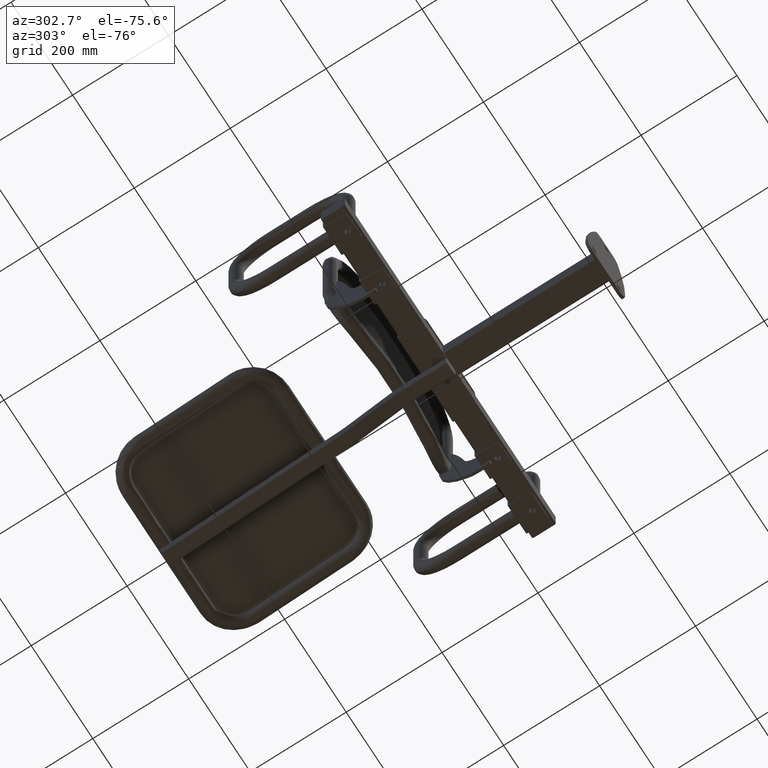
[diagram: clean part render]
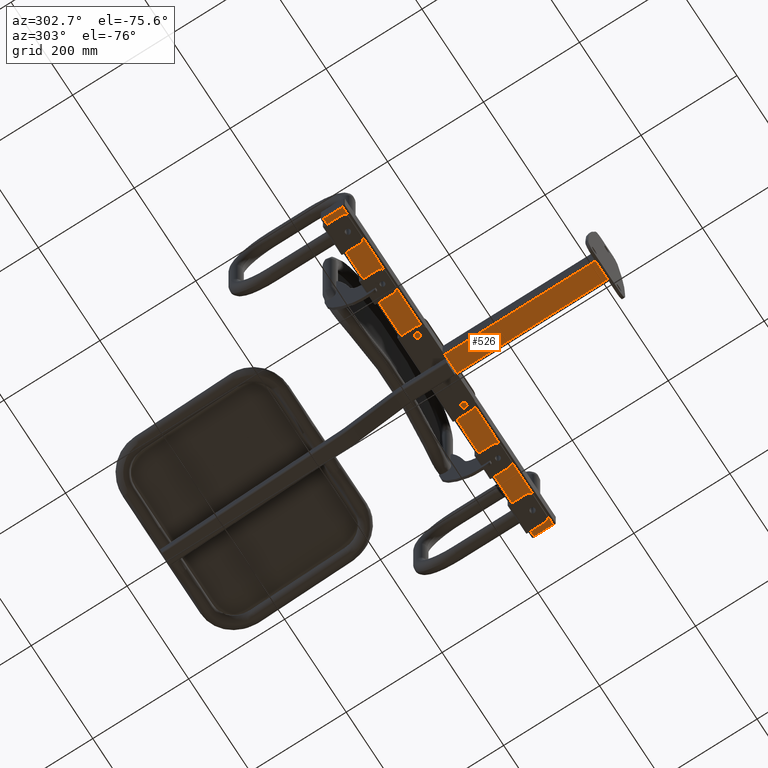
[diagram: same view with one face highlighted and labeled with its STEP entity id]
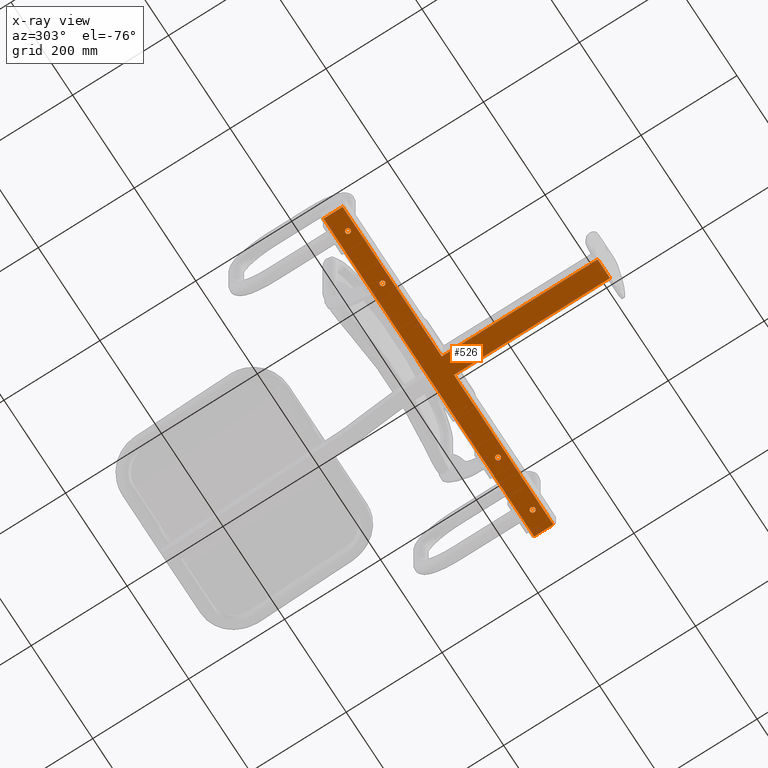
[diagram: x-ray of the same camera — body ghosted, the highlighted face saturated]
A machine part, auxiliary view. The second image highlights one B-rep face of the part: STEP entity #526.
The next image is the same camera in x-ray: the body ghosted, the highlighted face saturated — about 0% of this face is hidden behind the body in this view.
In plain terms, the highlighted planar face has unit normal (0, 0, -1).
Its self-contained STEP definition (entity closure, byte-faithful):
#298 = ORIENTED_EDGE ( 'NONE', *, *, #11733, .T. ) ;
#303 = ORIENTED_EDGE ( 'NONE', *, *, #11637, .T. ) ;
#306 = ORIENTED_EDGE ( 'NONE', *, *, #15418, .T. ) ;
#526 = ADVANCED_FACE ( 'NONE', ( #1681, #1685, #1680, #1682, #1683 ), #9831, .T. ) ;
#811 = CIRCLE ( 'NONE', #15543, 5.250000000000004400 ) ;
#814 = CIRCLE ( 'NONE', #15545, 5.250000000000004400 ) ;
#819 = CIRCLE ( 'NONE', #15549, 5.250000000000032000 ) ;
#1170 = AXIS2_PLACEMENT_3D ( 'NONE', #14410, #14411, #14412 ) ;
#1171 = AXIS2_PLACEMENT_3D ( 'NONE', #14415, #14416, #14417 ) ;
#1680 = FACE_OUTER_BOUND ( 'NONE', #11894, .T. ) ;
#1681 = FACE_BOUND ( 'NONE', #11879, .T. ) ;
#1682 = FACE_BOUND ( 'NONE', #11864, .T. ) ;
#1683 = FACE_BOUND ( 'NONE', #11904, .T. ) ;
#1685 = FACE_BOUND ( 'NONE', #11872, .T. ) ;
#2258 = EDGE_CURVE ( 'NONE', #10434, #10343, #6448, .T. ) ;
#2259 = EDGE_CURVE ( 'NONE', #10343, #10416, #6449, .T. ) ;
#2260 = EDGE_CURVE ( 'NONE', #10415, #10369, #6453, .T. ) ;
#2261 = EDGE_CURVE ( 'NONE', #10326, #10338, #6455, .T. ) ;
#2262 = EDGE_CURVE ( 'NONE', #10318, #10334, #6451, .T. ) ;
#2314 = EDGE_CURVE ( 'NONE', #10415, #10416, #6540, .T. ) ;
#3466 = ORIENTED_EDGE ( 'NONE', *, *, #2259, .T. ) ;
#3470 = ORIENTED_EDGE ( 'NONE', *, *, #11642, .T. ) ;
#3534 = CARTESIAN_POINT ( 'NONE',  ( 25.00000000000004300, 6.000000000000011500, -25.00000000000000000 ) ) ;
#3535 = DIRECTION ( 'NONE',  ( 1.000000000000000000, 1.214306433183765000E-016, -0.0000000000000000000 ) ) ;
#3885 = CARTESIAN_POINT ( 'NONE',  ( 24.99999999999996800, 331.0000000000000000, -25.00000000000000000 ) ) ;
#3886 = CARTESIAN_POINT ( 'NONE',  ( 20.00000000000004300, 6.000000000000005300, -25.00000000000000000 ) ) ;
#3891 = DIRECTION ( 'NONE',  ( -1.000000000000000000, -3.480322961207386200E-016, -0.0000000000000000000 ) ) ;
#3893 = DIRECTION ( 'NONE',  ( 2.385244779468109800E-016, -1.000000000000000000, -0.0000000000000000000 ) ) ;
#3894 = CARTESIAN_POINT ( 'NONE',  ( -19.99999999999995700, 326.0000000000000000, -25.00000000000000000 ) ) ;
#3895 = DIRECTION ( 'NONE',  ( -0.0000000000000000000, 1.000000000000000000, -0.0000000000000000000 ) ) ;
#3897 = CARTESIAN_POINT ( 'NONE',  ( 300.0000000000000000, 347.0000000000000600, -25.00000000000000000 ) ) ;
#3898 = DIRECTION ( 'NONE',  ( 0.0000000000000000000, 0.0000000000000000000, 1.000000000000000000 ) ) ;
#3899 = DIRECTION ( 'NONE',  ( -1.000000000000000000, 0.0000000000000000000, 0.0000000000000000000 ) ) ;
#3902 = CARTESIAN_POINT ( 'NONE',  ( 187.5000000000000000, 347.0000000000000600, -25.00000000000000000 ) ) ;
#3903 = DIRECTION ( 'NONE',  ( 0.0000000000000000000, 0.0000000000000000000, 1.000000000000000000 ) ) ;
#3904 = DIRECTION ( 'NONE',  ( -1.000000000000000000, 0.0000000000000000000, 0.0000000000000000000 ) ) ;
#6448 = LINE ( 'NONE', #3885, #6452 ) ;
#6449 = LINE ( 'NONE', #3886, #6454 ) ;
#6451 = CIRCLE ( 'NONE', #8623, 5.250000000000004400 ) ;
#6452 = VECTOR ( 'NONE', #3891, 1000.000000000000000 ) ;
#6453 = LINE ( 'NONE', #3894, #6456 ) ;
#6454 = VECTOR ( 'NONE', #3893, 1000.000000000000000 ) ;
#6455 = CIRCLE ( 'NONE', #8622, 5.250000000000032000 ) ;
#6456 = VECTOR ( 'NONE', #3895, 1000.000000000000000 ) ;
#6540 = LINE ( 'NONE', #3534, #6542 ) ;
#6542 = VECTOR ( 'NONE', #3535, 1000.000000000000000 ) ;
#6832 = CARTESIAN_POINT ( 'NONE',  ( -300.0000000000000000, 347.0000000000000000, -25.00000000000000000 ) ) ;
#6833 = DIRECTION ( 'NONE',  ( 0.0000000000000000000, 0.0000000000000000000, 1.000000000000000000 ) ) ;
#6834 = DIRECTION ( 'NONE',  ( 1.000000000000000000, 0.0000000000000000000, 0.0000000000000000000 ) ) ;
#8196 = ORIENTED_EDGE ( 'NONE', *, *, #15420, .T. ) ;
#8532 = AXIS2_PLACEMENT_3D ( 'NONE', #9833, #9830, #9835 ) ;
#8622 = AXIS2_PLACEMENT_3D ( 'NONE', #3897, #3898, #3899 ) ;
#8623 = AXIS2_PLACEMENT_3D ( 'NONE', #3902, #3903, #3904 ) ;
#9462 = CIRCLE ( 'NONE', #1170, 5.250000000000004400 ) ;
#9463 = CIRCLE ( 'NONE', #1171, 5.250000000000032000 ) ;
#9465 = LINE ( 'NONE', #14414, #9468 ) ;
#9467 = LINE ( 'NONE', #14418, #9470 ) ;
#9468 = VECTOR ( 'NONE', #14403, 1000.000000000000000 ) ;
#9469 = LINE ( 'NONE', #14420, #9472 ) ;
#9470 = VECTOR ( 'NONE', #14419, 1000.000000000000000 ) ;
#9471 = LINE ( 'NONE', #14422, #9474 ) ;
#9472 = VECTOR ( 'NONE', #14421, 1000.000000000000000 ) ;
#9474 = VECTOR ( 'NONE', #14423, 1000.000000000000000 ) ;
#9580 = CIRCLE ( 'NONE', #16652, 5.250000000000032000 ) ;
#9830 = DIRECTION ( 'NONE',  ( 0.0000000000000000000, 0.0000000000000000000, -1.000000000000000000 ) ) ;
#9831 = PLANE ( 'NONE',  #8532 ) ;
#9833 = CARTESIAN_POINT ( 'NONE',  ( 0.0000000000000000000, 0.0000000000000000000, -25.00000000000000000 ) ) ;
#9835 = DIRECTION ( 'NONE',  ( -1.000000000000000000, 0.0000000000000000000, 0.0000000000000000000 ) ) ;
#10151 = ORIENTED_EDGE ( 'NONE', *, *, #2261, .T. ) ;
#10310 = VERTEX_POINT ( 'NONE', #14065 ) ;
#10318 = VERTEX_POINT ( 'NONE', #14073 ) ;
#10326 = VERTEX_POINT ( 'NONE', #14081 ) ;
#10329 = VERTEX_POINT ( 'NONE', #14084 ) ;
#10332 = VERTEX_POINT ( 'NONE', #14087 ) ;
#10334 = VERTEX_POINT ( 'NONE', #14089 ) ;
#10338 = VERTEX_POINT ( 'NONE', #14093 ) ;
#10343 = VERTEX_POINT ( 'NONE', #14098 ) ;
#10369 = VERTEX_POINT ( 'NONE', #14124 ) ;
#10370 = VERTEX_POINT ( 'NONE', #14125 ) ;
#10406 = VERTEX_POINT ( 'NONE', #14161 ) ;
#10415 = VERTEX_POINT ( 'NONE', #14170 ) ;
#10416 = VERTEX_POINT ( 'NONE', #14171 ) ;
#10426 = VERTEX_POINT ( 'NONE', #14181 ) ;
#10434 = VERTEX_POINT ( 'NONE', #14189 ) ;
#10435 = VERTEX_POINT ( 'NONE', #14190 ) ;
#10457 = ORIENTED_EDGE ( 'NONE', *, *, #11640, .T. ) ;
#10463 = ORIENTED_EDGE ( 'NONE', *, *, #11641, .T. ) ;
#10465 = ORIENTED_EDGE ( 'NONE', *, *, #2258, .T. ) ;
#11637 = EDGE_CURVE ( 'NONE', #10310, #10332, #9462, .T. ) ;
#11638 = EDGE_CURVE ( 'NONE', #10426, #10406, #9463, .T. ) ;
#11639 = EDGE_CURVE ( 'NONE', #10369, #10435, #9465, .T. ) ;
#11640 = EDGE_CURVE ( 'NONE', #10435, #10329, #9467, .T. ) ;
#11641 = EDGE_CURVE ( 'NONE', #10329, #10370, #9469, .T. ) ;
#11642 = EDGE_CURVE ( 'NONE', #10370, #10434, #9471, .T. ) ;
#11733 = EDGE_CURVE ( 'NONE', #10406, #10426, #9580, .T. ) ;
#11864 = EDGE_LOOP ( 'NONE', ( #13836, #10151 ) ) ;
#11872 = EDGE_LOOP ( 'NONE', ( #298, #13827 ) ) ;
#11879 = EDGE_LOOP ( 'NONE', ( #306, #303 ) ) ;
#11894 = EDGE_LOOP ( 'NONE', ( #13828, #10457, #10463, #3470, #10465, #3466, #13839, #13837 ) ) ;
#11904 = EDGE_LOOP ( 'NONE', ( #8196, #14434 ) ) ;
#12987 = CARTESIAN_POINT ( 'NONE',  ( -187.5000000000000000, 347.0000000000000000, -25.00000000000000000 ) ) ;
#12988 = DIRECTION ( 'NONE',  ( 0.0000000000000000000, 0.0000000000000000000, 1.000000000000000000 ) ) ;
#12989 = DIRECTION ( 'NONE',  ( 1.000000000000000000, 0.0000000000000000000, 0.0000000000000000000 ) ) ;
#12995 = CARTESIAN_POINT ( 'NONE',  ( 187.5000000000000000, 347.0000000000000600, -25.00000000000000000 ) ) ;
#12996 = DIRECTION ( 'NONE',  ( 0.0000000000000000000, 0.0000000000000000000, 1.000000000000000000 ) ) ;
#12997 = DIRECTION ( 'NONE',  ( -1.000000000000000000, 0.0000000000000000000, 0.0000000000000000000 ) ) ;
#13013 = CARTESIAN_POINT ( 'NONE',  ( 300.0000000000000000, 347.0000000000000600, -25.00000000000000000 ) ) ;
#13014 = DIRECTION ( 'NONE',  ( 0.0000000000000000000, 0.0000000000000000000, 1.000000000000000000 ) ) ;
#13015 = DIRECTION ( 'NONE',  ( -1.000000000000000000, 0.0000000000000000000, 0.0000000000000000000 ) ) ;
#13827 = ORIENTED_EDGE ( 'NONE', *, *, #11638, .T. ) ;
#13828 = ORIENTED_EDGE ( 'NONE', *, *, #11639, .T. ) ;
#13836 = ORIENTED_EDGE ( 'NONE', *, *, #15830, .T. ) ;
#13837 = ORIENTED_EDGE ( 'NONE', *, *, #2260, .T. ) ;
#13839 = ORIENTED_EDGE ( 'NONE', *, *, #2314, .F. ) ;
#14065 = CARTESIAN_POINT ( 'NONE',  ( -182.2500000000000000, 347.0000000000000000, -25.00000000000000000 ) ) ;
#14073 = CARTESIAN_POINT ( 'NONE',  ( 192.7500000000000000, 347.0000000000000600, -25.00000000000000000 ) ) ;
#14081 = CARTESIAN_POINT ( 'NONE',  ( 305.2500000000000000, 347.0000000000000600, -25.00000000000000000 ) ) ;
#14084 = CARTESIAN_POINT ( 'NONE',  ( -342.0000000000000600, 371.0000000000000000, -25.00000000000000000 ) ) ;
#14087 = CARTESIAN_POINT ( 'NONE',  ( -192.7500000000000000, 347.0000000000000000, -25.00000000000000000 ) ) ;
#14089 = CARTESIAN_POINT ( 'NONE',  ( 182.2500000000000000, 347.0000000000000600, -25.00000000000000000 ) ) ;
#14093 = CARTESIAN_POINT ( 'NONE',  ( 294.7499999999999400, 347.0000000000000600, -25.00000000000000000 ) ) ;
#14098 = CARTESIAN_POINT ( 'NONE',  ( 19.99999999999996400, 331.0000000000000000, -25.00000000000000000 ) ) ;
#14124 = CARTESIAN_POINT ( 'NONE',  ( -19.99999999999995700, 331.0000000000000000, -25.00000000000000000 ) ) ;
#14125 = CARTESIAN_POINT ( 'NONE',  ( 341.9999999999999400, 371.0000000000000600, -25.00000000000000000 ) ) ;
#14161 = CARTESIAN_POINT ( 'NONE',  ( -305.2500000000000000, 347.0000000000000000, -25.00000000000000000 ) ) ;
#14170 = CARTESIAN_POINT ( 'NONE',  ( -19.99999999999995400, 6.000000000000006200, -25.00000000000000000 ) ) ;
#14171 = CARTESIAN_POINT ( 'NONE',  ( 20.00000000000004300, 6.000000000000010700, -25.00000000000000000 ) ) ;
#14181 = CARTESIAN_POINT ( 'NONE',  ( -294.7499999999999400, 347.0000000000000000, -25.00000000000000000 ) ) ;
#14189 = CARTESIAN_POINT ( 'NONE',  ( 342.0000000000000600, 331.0000000000001100, -25.00000000000000000 ) ) ;
#14190 = CARTESIAN_POINT ( 'NONE',  ( -342.0000000000000600, 331.0000000000000000, -25.00000000000000000 ) ) ;
#14403 = DIRECTION ( 'NONE',  ( -1.000000000000000000, -0.0000000000000000000, -0.0000000000000000000 ) ) ;
#14410 = CARTESIAN_POINT ( 'NONE',  ( -187.5000000000000000, 347.0000000000000000, -25.00000000000000000 ) ) ;
#14411 = DIRECTION ( 'NONE',  ( 0.0000000000000000000, 0.0000000000000000000, 1.000000000000000000 ) ) ;
#14412 = DIRECTION ( 'NONE',  ( 1.000000000000000000, 0.0000000000000000000, 0.0000000000000000000 ) ) ;
#14414 = CARTESIAN_POINT ( 'NONE',  ( -344.0000000000000600, 331.0000000000000000, -25.00000000000000000 ) ) ;
#14415 = CARTESIAN_POINT ( 'NONE',  ( -300.0000000000000000, 347.0000000000000000, -25.00000000000000000 ) ) ;
#14416 = DIRECTION ( 'NONE',  ( 0.0000000000000000000, 0.0000000000000000000, 1.000000000000000000 ) ) ;
#14417 = DIRECTION ( 'NONE',  ( 1.000000000000000000, 0.0000000000000000000, 0.0000000000000000000 ) ) ;
#14418 = CARTESIAN_POINT ( 'NONE',  ( -342.0000000000000600, 371.0000000000000000, -25.00000000000000000 ) ) ;
#14419 = DIRECTION ( 'NONE',  ( -0.0000000000000000000, 1.000000000000000000, -0.0000000000000000000 ) ) ;
#14420 = CARTESIAN_POINT ( 'NONE',  ( 343.9999999999998900, 371.0000000000000600, -25.00000000000000000 ) ) ;
#14421 = DIRECTION ( 'NONE',  ( 1.000000000000000000, 8.068481283613057000E-017, -0.0000000000000000000 ) ) ;
#14422 = CARTESIAN_POINT ( 'NONE',  ( 342.0000000000000600, 331.0000000000001100, -25.00000000000000000 ) ) ;
#14423 = DIRECTION ( 'NONE',  ( 3.330669073875474400E-015, -1.000000000000000000, -0.0000000000000000000 ) ) ;
#14434 = ORIENTED_EDGE ( 'NONE', *, *, #2262, .T. ) ;
#15418 = EDGE_CURVE ( 'NONE', #10332, #10310, #811, .T. ) ;
#15420 = EDGE_CURVE ( 'NONE', #10334, #10318, #814, .T. ) ;
#15543 = AXIS2_PLACEMENT_3D ( 'NONE', #12987, #12988, #12989 ) ;
#15545 = AXIS2_PLACEMENT_3D ( 'NONE', #12995, #12996, #12997 ) ;
#15549 = AXIS2_PLACEMENT_3D ( 'NONE', #13013, #13014, #13015 ) ;
#15830 = EDGE_CURVE ( 'NONE', #10338, #10326, #819, .T. ) ;
#16652 = AXIS2_PLACEMENT_3D ( 'NONE', #6832, #6833, #6834 ) ;